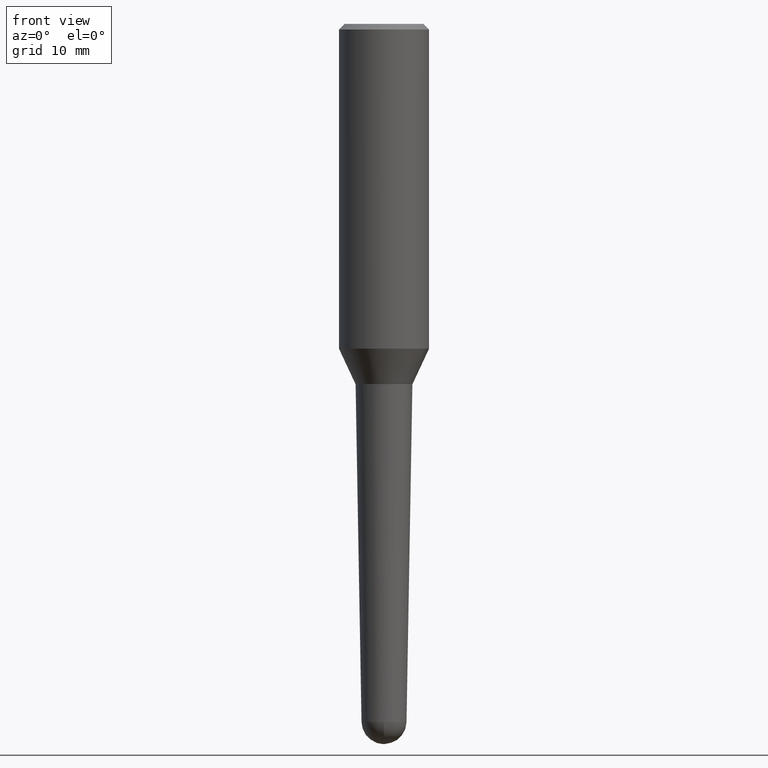
[diagram: clean part render]
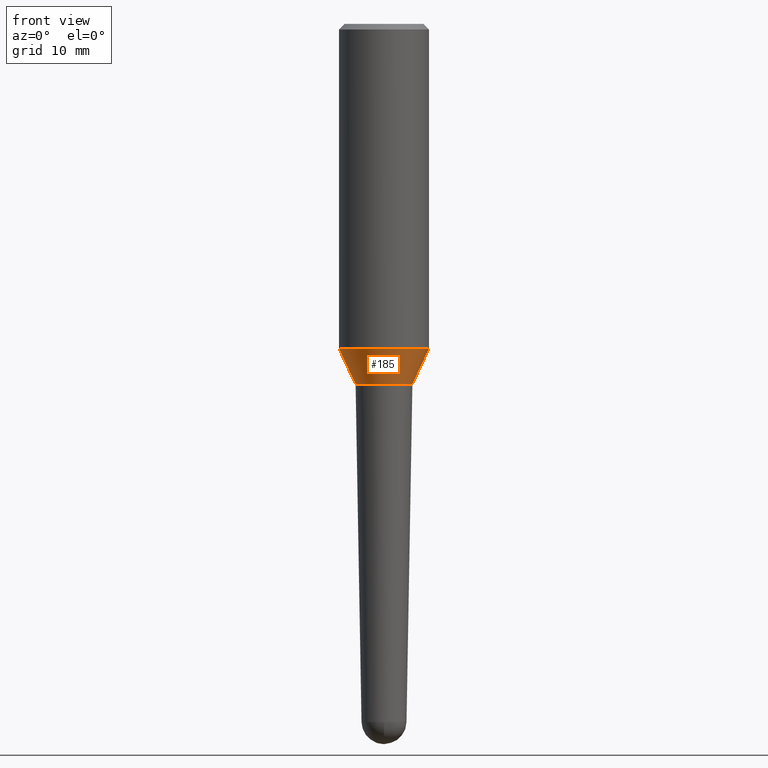
[diagram: same view with one face highlighted and labeled with its STEP entity id]
A machine part, front view. The second image highlights one B-rep face of the part: STEP entity #185.
In plain terms, the highlighted conical surface has half-angle 25 deg.
Its self-contained STEP definition (entity closure, byte-faithful):
#15 = LINE ( 'NONE', #437, #346 ) ;
#23 = AXIS2_PLACEMENT_3D ( 'NONE', #234, #444, #301 ) ;
#52 = ORIENTED_EDGE ( 'NONE', *, *, #327, .T. ) ;
#53 = EDGE_CURVE ( 'NONE', #445, #373, #306, .T. ) ;
#55 = VERTEX_POINT ( 'NONE', #187 ) ;
#103 = VERTEX_POINT ( 'NONE', #224 ) ;
#109 = EDGE_CURVE ( 'NONE', #103, #55, #405, .T. ) ;
#112 = VECTOR ( 'NONE', #192, 39.37007874015748854 ) ;
#116 = DIRECTION ( 'NONE',  ( -0.4226182617406884501, 6.167240084480778447E-15, 0.9063077870366550437 ) ) ;
#132 = EDGE_LOOP ( 'NONE', ( #236, #372, #52, #136 ) ) ;
#136 = ORIENTED_EDGE ( 'NONE', *, *, #53, .F. ) ;
#174 = CARTESIAN_POINT ( 'NONE',  ( 0.2500000000000002220, -8.043702385594237575E-15, -1.803807927055801397 ) ) ;
#175 = CARTESIAN_POINT ( 'NONE',  ( 4.411156017964436703E-29, -6.297961716172668531E-15, -1.803807927055801397 ) ) ;
#185 = ADVANCED_FACE ( 'NONE', ( #336 ), #340, .T. ) ;
#187 = CARTESIAN_POINT ( 'NONE',  ( 0.1587472877458968035, -8.089743322530388676E-15, -1.999499999999999833 ) ) ;
#192 = DIRECTION ( 'NONE',  ( 0.4226182617406884501, 2.132291770428352764E-16, 0.9063077870366550437 ) ) ;
#209 = DIRECTION ( 'NONE',  ( 1.000000000000000000, -6.982962677686268288E-15, 0.000000000000000000 ) ) ;
#224 = CARTESIAN_POINT ( 'NONE',  ( -0.1587472877458968035, -5.853249615722215052E-15, -1.999499999999999833 ) ) ;
#234 = CARTESIAN_POINT ( 'NONE',  ( 4.889714877967179832E-29, -6.981216937016868873E-15, -1.999499999999999833 ) ) ;
#236 = ORIENTED_EDGE ( 'NONE', *, *, #276, .F. ) ;
#238 = CARTESIAN_POINT ( 'NONE',  ( 0.1587472877458968035, -8.089743322530388676E-15, -1.999499999999999833 ) ) ;
#247 = DIRECTION ( 'NONE',  ( -2.445468806185136597E-29, 3.491481338843145583E-15, 1.000000000000000000 ) ) ;
#263 = CARTESIAN_POINT ( 'NONE',  ( 4.889714877967179832E-29, -6.981216937016868873E-15, -1.999499999999999833 ) ) ;
#264 = AXIS2_PLACEMENT_3D ( 'NONE', #175, #247, #209 ) ;
#267 = LINE ( 'NONE', #238, #112 ) ;
#276 = EDGE_CURVE ( 'NONE', #103, #445, #15, .T. ) ;
#301 = DIRECTION ( 'NONE',  ( 1.000000000000000000, -6.982962677686266711E-15, 0.000000000000000000 ) ) ;
#306 = CIRCLE ( 'NONE', #264, 0.2500000000000002220 ) ;
#327 = EDGE_CURVE ( 'NONE', #55, #373, #267, .T. ) ;
#336 = FACE_OUTER_BOUND ( 'NONE', #132, .T. ) ;
#340 = CONICAL_SURFACE ( 'NONE', #23, 0.1587472877458968035, 0.4363323129985702820 ) ;
#346 = VECTOR ( 'NONE', #116, 39.37007874015748854 ) ;
#361 = DIRECTION ( 'NONE',  ( -2.445468806185136597E-29, 3.491481338843145583E-15, 1.000000000000000000 ) ) ;
#372 = ORIENTED_EDGE ( 'NONE', *, *, #109, .T. ) ;
#373 = VERTEX_POINT ( 'NONE', #174 ) ;
#375 = AXIS2_PLACEMENT_3D ( 'NONE', #263, #361, #427 ) ;
#405 = CIRCLE ( 'NONE', #375, 0.1587472877458968035 ) ;
#427 = DIRECTION ( 'NONE',  ( 1.000000000000000000, -6.982962677686266711E-15, 0.000000000000000000 ) ) ;
#437 = CARTESIAN_POINT ( 'NONE',  ( -0.1587472877458968035, -5.853249615722215052E-15, -1.999499999999999833 ) ) ;
#444 = DIRECTION ( 'NONE',  ( -2.445468806185136597E-29, 3.491481338843145583E-15, 1.000000000000000000 ) ) ;
#445 = VERTEX_POINT ( 'NONE', #447 ) ;
#447 = CARTESIAN_POINT ( 'NONE',  ( -0.2500000000000002220, -4.521604876772416489E-15, -1.803807927055801397 ) ) ;